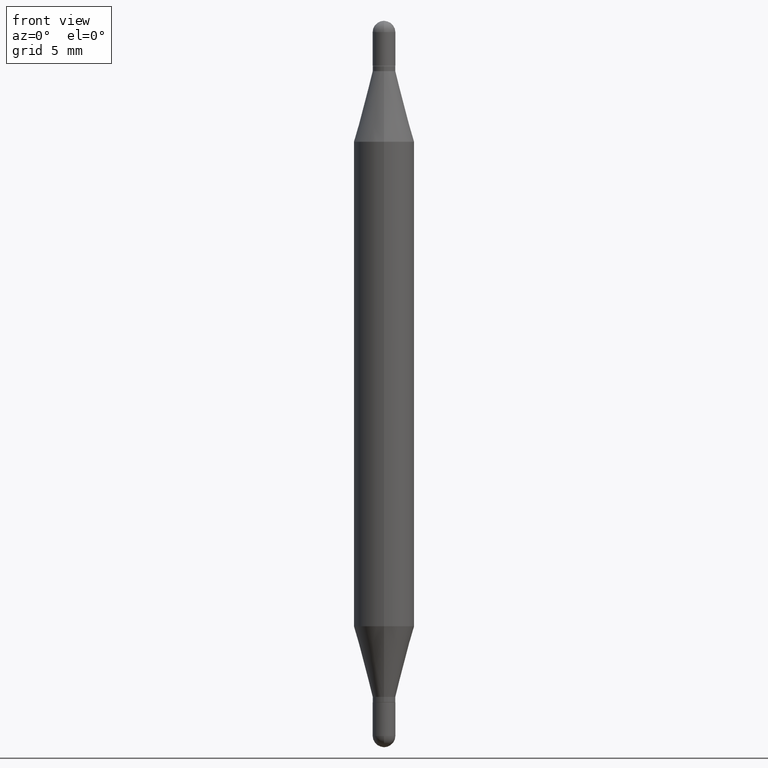
[diagram: clean part render]
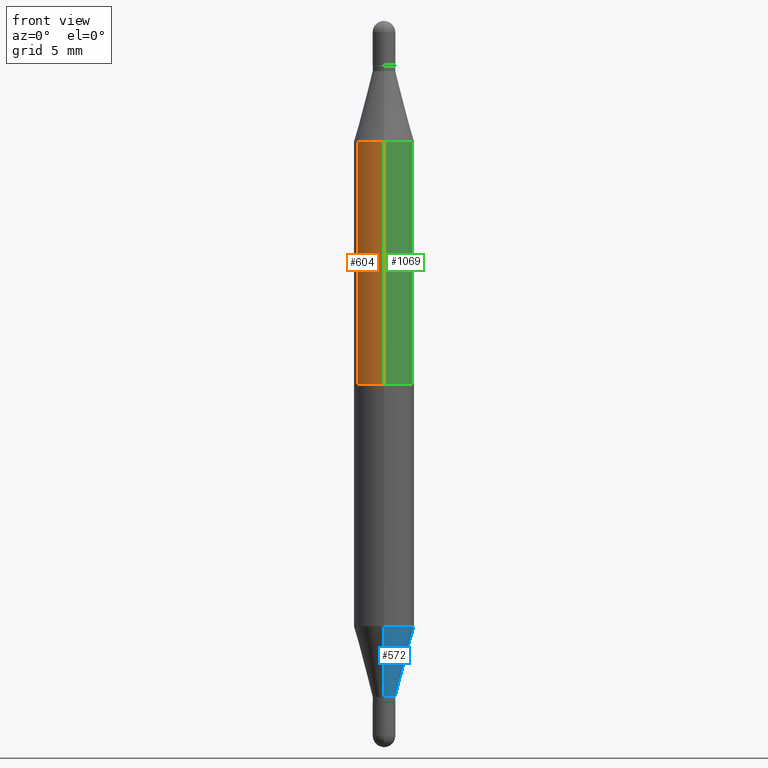
[diagram: same view with three faces highlighted in distinct colors, each labeled with its STEP entity id]
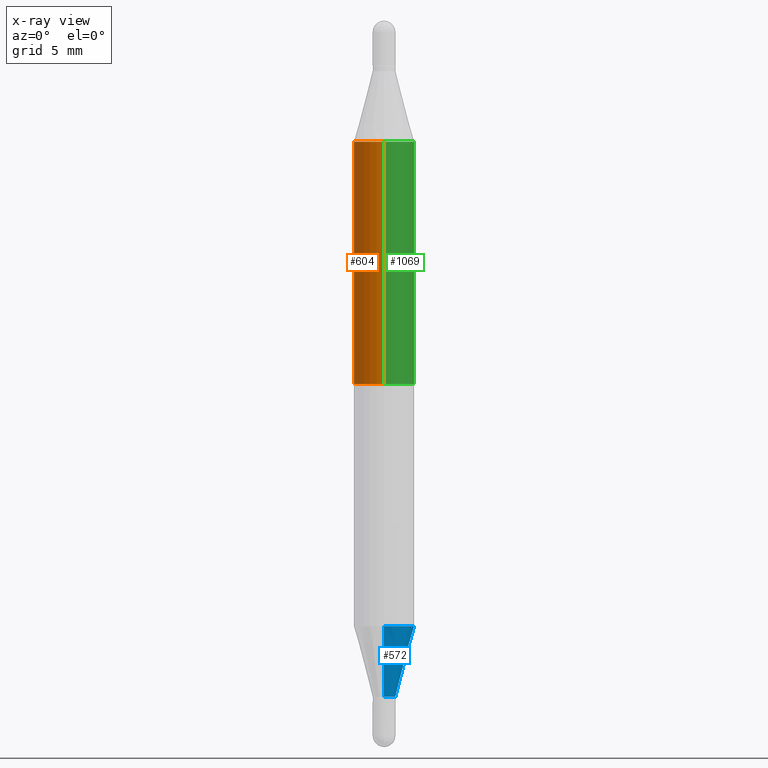
[diagram: x-ray of the same camera — body ghosted, the three highlighted faces saturated]
A machine part, front view with three faces highlighted in distinct colors.
The next image is the same camera in x-ray (body ghosted, the three faces saturated) — at least one of them is partly hidden behind the body in this view.
Their STEP definitions:

[orange] entity #604 — the highlighted cylindrical surface (edge-blend (fillet) strip) has radius 1.5875 mm, axis along (-0, -0, -1).
#65 = VERTEX_POINT ( 'NONE', #601 ) ;
#66 = CARTESIAN_POINT ( 'NONE',  ( 0.000000000000000000, -5.228321854365732350E-15, -1.500000000000000444 ) ) ;
#77 = LINE ( 'NONE', #508, #698 ) ;
#90 = VERTEX_POINT ( 'NONE', #779 ) ;
#136 = FACE_OUTER_BOUND ( 'NONE', #940, .T. ) ;
#142 = EDGE_CURVE ( 'NONE', #525, #695, #77, .T. ) ;
#144 = DIRECTION ( 'NONE',  ( -2.445459728280500552E-29, -3.479601466901707095E-15, -1.000000000000000000 ) ) ;
#207 = DIRECTION ( 'NONE',  ( 0.000000000000000000, 1.000000000000000000, -4.370956789862821150E-15 ) ) ;
#212 = EDGE_CURVE ( 'NONE', #695, #65, #823, .T. ) ;
#284 = DIRECTION ( 'NONE',  ( 2.445459728280500552E-29, 3.479601466901707095E-15, 1.000000000000000000 ) ) ;
#334 = DIRECTION ( 'NONE',  ( -2.445459728280500552E-29, -3.479601466901707095E-15, -1.000000000000000000 ) ) ;
#357 = ORIENTED_EDGE ( 'NONE', *, *, #212, .F. ) ;
#425 = DIRECTION ( 'NONE',  ( -2.445459728280500552E-29, -3.479601466901707095E-15, -1.000000000000000000 ) ) ;
#449 = AXIS2_PLACEMENT_3D ( 'NONE', #969, #284, #964 ) ;
#508 = CARTESIAN_POINT ( 'NONE',  ( -4.364351673553916201E-16, -0.06250000000000521805, -1.500000000000000222 ) ) ;
#525 = VERTEX_POINT ( 'NONE', #1013 ) ;
#568 = DIRECTION ( 'NONE',  ( -6.982962677686265922E-15, -1.000000000000000000, 4.370956789862821150E-15 ) ) ;
#580 = CARTESIAN_POINT ( 'NONE',  ( 4.287811248607206733E-16, 0.06249999999999477501, -1.500000000000000666 ) ) ;
#591 = CIRCLE ( 'NONE', #449, 0.06250000000000000000 ) ;
#601 = CARTESIAN_POINT ( 'NONE',  ( 4.287811248607451280E-16, 0.06249999999999737710, -0.7500000000000004441 ) ) ;
#604 = ADVANCED_FACE ( 'NONE', ( #136 ), #923, .T. ) ;
#636 = LINE ( 'NONE', #580, #809 ) ;
#695 = VERTEX_POINT ( 'NONE', #892 ) ;
#698 = VECTOR ( 'NONE', #425, 39.37007874015748143 ) ;
#756 = EDGE_CURVE ( 'NONE', #90, #525, #591, .T. ) ;
#779 = CARTESIAN_POINT ( 'NONE',  ( 4.287811248607512417E-16, 0.06249999999999911876, -0.2497365840355655620 ) ) ;
#809 = VECTOR ( 'NONE', #144, 39.37007874015748143 ) ;
#823 = CIRCLE ( 'NONE', #972, 0.06250000000000000000 ) ;
#825 = ORIENTED_EDGE ( 'NONE', *, *, #756, .F. ) ;
#841 = ORIENTED_EDGE ( 'NONE', *, *, #905, .T. ) ;
#868 = CARTESIAN_POINT ( 'NONE',  ( 1.834094796210375974E-29, -2.618620754189450747E-15, -0.7500000000000002220 ) ) ;
#892 = CARTESIAN_POINT ( 'NONE',  ( -4.364351673553732791E-16, -0.06250000000000262290, -0.7499999999999998890 ) ) ;
#905 = EDGE_CURVE ( 'NONE', #90, #65, #636, .T. ) ;
#923 = CYLINDRICAL_SURFACE ( 'NONE', #1020, 0.06250000000000000000 ) ;
#940 = EDGE_LOOP ( 'NONE', ( #825, #841, #357, #950 ) ) ;
#950 = ORIENTED_EDGE ( 'NONE', *, *, #142, .F. ) ;
#964 = DIRECTION ( 'NONE',  ( -6.982962677686265922E-15, -1.000000000000000000, 3.278217592397115862E-15 ) ) ;
#966 = DIRECTION ( 'NONE',  ( -0.000000000000000000, -3.485547902910486918E-15, -1.000000000000000000 ) ) ;
#969 = CARTESIAN_POINT ( 'NONE',  ( 3.057468833483437762E-29, -8.779034381623444770E-16, -0.2497365840355653399 ) ) ;
#972 = AXIS2_PLACEMENT_3D ( 'NONE', #868, #966, #207 ) ;
#1013 = CARTESIAN_POINT ( 'NONE',  ( -4.364351673553610517E-16, -0.06250000000000087430, -0.2497365840355651456 ) ) ;
#1020 = AXIS2_PLACEMENT_3D ( 'NONE', #66, #334, #568 ) ;

[blue] entity #572 — the highlighted conical surface has half-angle 15 deg.
#31 = DIRECTION ( 'NONE',  ( -2.445459728280500552E-29, 3.491494338919266742E-15, 1.000000000000000000 ) ) ;
#106 = CARTESIAN_POINT ( 'NONE',  ( -4.364351673553610517E-16, -0.06250000000000435763, -1.250263415964434799 ) ) ;
#134 = VERTEX_POINT ( 'NONE', #345 ) ;
#166 = EDGE_CURVE ( 'NONE', #960, #471, #766, .T. ) ;
#172 = ORIENTED_EDGE ( 'NONE', *, *, #507, .F. ) ;
#195 = CARTESIAN_POINT ( 'NONE',  ( 3.413861780679579577E-29, -4.874126097131297156E-15, -1.396000000000000352 ) ) ;
#241 = DIRECTION ( 'NONE',  ( -2.445459728280500552E-29, 3.491494338919266742E-15, 1.000000000000000000 ) ) ;
#246 = DIRECTION ( 'NONE',  ( -2.445459728280500552E-29, 3.491494338919266742E-15, 1.000000000000000000 ) ) ;
#283 = CIRCLE ( 'NONE', #984, 0.06250000000000000000 ) ;
#326 = DIRECTION ( 'NONE',  ( -6.982962677686265133E-15, -1.000000000000000000, 0.000000000000000000 ) ) ;
#328 = AXIS2_PLACEMENT_3D ( 'NONE', #195, #31, #326 ) ;
#343 = VECTOR ( 'NONE', #593, 39.37007874015748143 ) ;
#345 = CARTESIAN_POINT ( 'NONE',  ( -1.637504747917063431E-16, -0.02345000000000452625, -1.396000000000000352 ) ) ;
#417 = EDGE_CURVE ( 'NONE', #134, #681, #998, .T. ) ;
#471 = VERTEX_POINT ( 'NONE', #581 ) ;
#482 = CARTESIAN_POINT ( 'NONE',  ( 3.057468833483437762E-29, -4.365287638997689123E-15, -1.250263415964435021 ) ) ;
#504 = FACE_OUTER_BOUND ( 'NONE', #739, .T. ) ;
#507 = EDGE_CURVE ( 'NONE', #681, #471, #283, .T. ) ;
#572 = ADVANCED_FACE ( 'NONE', ( #504 ), #596, .T. ) ;
#579 = ORIENTED_EDGE ( 'NONE', *, *, #772, .T. ) ;
#581 = CARTESIAN_POINT ( 'NONE',  ( 4.287811248607390637E-16, 0.06249999999999563544, -1.250263415964435243 ) ) ;
#583 = DIRECTION ( 'NONE',  ( -6.982962677686265133E-15, -1.000000000000000000, 0.000000000000000000 ) ) ;
#593 = DIRECTION ( 'NONE',  ( 1.839019923739602287E-15, 0.2588190451025252359, 0.9659258262890670910 ) ) ;
#596 = CONICAL_SURFACE ( 'NONE', #1001, 0.02344999999999965168, 0.2617993877991505736 ) ;
#663 = DIRECTION ( 'NONE',  ( -1.807323732225332111E-15, -0.2588190451025184635, 0.9659258262890689783 ) ) ;
#667 = CARTESIAN_POINT ( 'NONE',  ( 3.413861780679579577E-29, -4.874126097131297156E-15, -1.396000000000000352 ) ) ;
#681 = VERTEX_POINT ( 'NONE', #106 ) ;
#739 = EDGE_LOOP ( 'NONE', ( #579, #1079, #172, #929 ) ) ;
#745 = VECTOR ( 'NONE', #663, 39.37007874015748854 ) ;
#766 = LINE ( 'NONE', #1029, #343 ) ;
#772 = EDGE_CURVE ( 'NONE', #134, #960, #805, .T. ) ;
#805 = CIRCLE ( 'NONE', #328, 0.02344999999999965168 ) ;
#929 = ORIENTED_EDGE ( 'NONE', *, *, #417, .F. ) ;
#960 = VERTEX_POINT ( 'NONE', #1035 ) ;
#984 = AXIS2_PLACEMENT_3D ( 'NONE', #482, #241, #1107 ) ;
#998 = LINE ( 'NONE', #1089, #745 ) ;
#1001 = AXIS2_PLACEMENT_3D ( 'NONE', #667, #246, #583 ) ;
#1029 = CARTESIAN_POINT ( 'NONE',  ( 1.666222715357751368E-16, 0.02344999999999477711, -1.396000000000000352 ) ) ;
#1035 = CARTESIAN_POINT ( 'NONE',  ( 1.666222715357763448E-16, 0.02344999999999477711, -1.396000000000000352 ) ) ;
#1079 = ORIENTED_EDGE ( 'NONE', *, *, #166, .T. ) ;
#1089 = CARTESIAN_POINT ( 'NONE',  ( -1.637504747917063431E-16, -0.02345000000000452625, -1.396000000000000352 ) ) ;
#1107 = DIRECTION ( 'NONE',  ( -6.982962677686265922E-15, -1.000000000000000000, 4.370956789862821150E-15 ) ) ;

[green] entity #1069 — the highlighted cylindrical surface (edge-blend (fillet) strip) has radius 1.5875 mm, axis along (-0, -0, -1).
#7 = DIRECTION ( 'NONE',  ( -6.982962677686265922E-15, -1.000000000000000000, 4.370956789862821150E-15 ) ) ;
#65 = VERTEX_POINT ( 'NONE', #601 ) ;
#77 = LINE ( 'NONE', #508, #698 ) ;
#79 = CIRCLE ( 'NONE', #991, 0.06250000000000000000 ) ;
#87 = DIRECTION ( 'NONE',  ( 0.000000000000000000, 1.000000000000000000, -4.370956789862821150E-15 ) ) ;
#90 = VERTEX_POINT ( 'NONE', #779 ) ;
#101 = DIRECTION ( 'NONE',  ( -2.445459728280500552E-29, -3.479601466901707095E-15, -1.000000000000000000 ) ) ;
#142 = EDGE_CURVE ( 'NONE', #525, #695, #77, .T. ) ;
#144 = DIRECTION ( 'NONE',  ( -2.445459728280500552E-29, -3.479601466901707095E-15, -1.000000000000000000 ) ) ;
#164 = FACE_OUTER_BOUND ( 'NONE', #538, .T. ) ;
#169 = DIRECTION ( 'NONE',  ( -6.982962677686265922E-15, -1.000000000000000000, 3.278217592397115862E-15 ) ) ;
#173 = CYLINDRICAL_SURFACE ( 'NONE', #186, 0.06250000000000000000 ) ;
#180 = ORIENTED_EDGE ( 'NONE', *, *, #1009, .F. ) ;
#186 = AXIS2_PLACEMENT_3D ( 'NONE', #858, #101, #7 ) ;
#364 = CIRCLE ( 'NONE', #398, 0.06250000000000000000 ) ;
#398 = AXIS2_PLACEMENT_3D ( 'NONE', #668, #1031, #169 ) ;
#425 = DIRECTION ( 'NONE',  ( -2.445459728280500552E-29, -3.479601466901707095E-15, -1.000000000000000000 ) ) ;
#429 = CARTESIAN_POINT ( 'NONE',  ( 1.834094796210375974E-29, -2.618620754189450747E-15, -0.7500000000000002220 ) ) ;
#508 = CARTESIAN_POINT ( 'NONE',  ( -4.364351673553916201E-16, -0.06250000000000521805, -1.500000000000000222 ) ) ;
#525 = VERTEX_POINT ( 'NONE', #1013 ) ;
#538 = EDGE_LOOP ( 'NONE', ( #800, #180, #589, #588 ) ) ;
#580 = CARTESIAN_POINT ( 'NONE',  ( 4.287811248607206733E-16, 0.06249999999999477501, -1.500000000000000666 ) ) ;
#588 = ORIENTED_EDGE ( 'NONE', *, *, #1059, .F. ) ;
#589 = ORIENTED_EDGE ( 'NONE', *, *, #142, .T. ) ;
#601 = CARTESIAN_POINT ( 'NONE',  ( 4.287811248607451280E-16, 0.06249999999999737710, -0.7500000000000004441 ) ) ;
#636 = LINE ( 'NONE', #580, #809 ) ;
#668 = CARTESIAN_POINT ( 'NONE',  ( 3.057468833483437762E-29, -8.779034381623444770E-16, -0.2497365840355653399 ) ) ;
#695 = VERTEX_POINT ( 'NONE', #892 ) ;
#698 = VECTOR ( 'NONE', #425, 39.37007874015748143 ) ;
#778 = DIRECTION ( 'NONE',  ( -0.000000000000000000, -3.485547902910486918E-15, -1.000000000000000000 ) ) ;
#779 = CARTESIAN_POINT ( 'NONE',  ( 4.287811248607512417E-16, 0.06249999999999911876, -0.2497365840355655620 ) ) ;
#800 = ORIENTED_EDGE ( 'NONE', *, *, #905, .F. ) ;
#809 = VECTOR ( 'NONE', #144, 39.37007874015748143 ) ;
#858 = CARTESIAN_POINT ( 'NONE',  ( 0.000000000000000000, -5.228321854365732350E-15, -1.500000000000000444 ) ) ;
#892 = CARTESIAN_POINT ( 'NONE',  ( -4.364351673553732791E-16, -0.06250000000000262290, -0.7499999999999998890 ) ) ;
#905 = EDGE_CURVE ( 'NONE', #90, #65, #636, .T. ) ;
#991 = AXIS2_PLACEMENT_3D ( 'NONE', #429, #778, #87 ) ;
#1009 = EDGE_CURVE ( 'NONE', #525, #90, #364, .T. ) ;
#1013 = CARTESIAN_POINT ( 'NONE',  ( -4.364351673553610517E-16, -0.06250000000000087430, -0.2497365840355651456 ) ) ;
#1031 = DIRECTION ( 'NONE',  ( 2.445459728280500552E-29, 3.479601466901707095E-15, 1.000000000000000000 ) ) ;
#1059 = EDGE_CURVE ( 'NONE', #65, #695, #79, .T. ) ;
#1069 = ADVANCED_FACE ( 'NONE', ( #164 ), #173, .T. ) ;